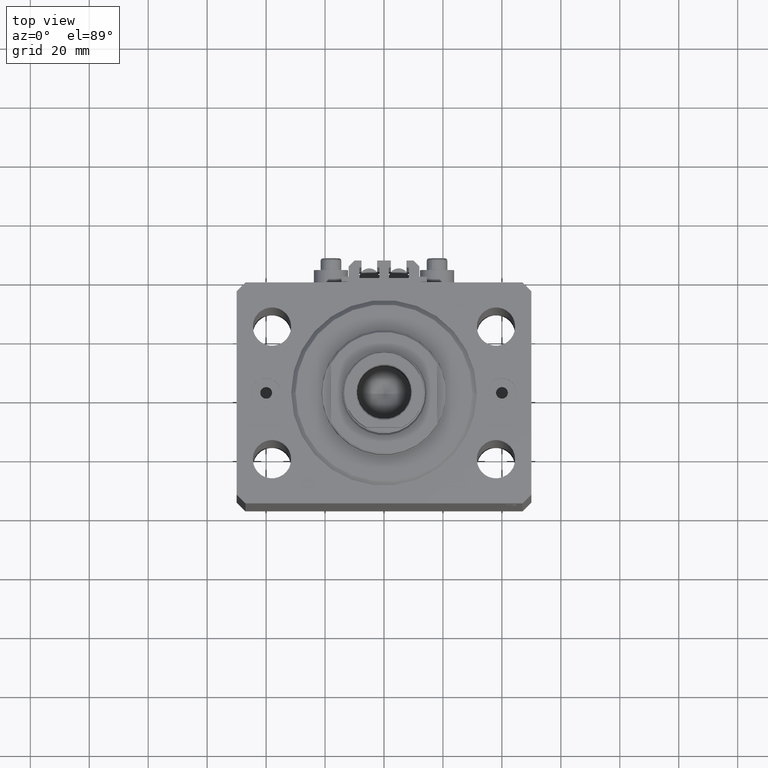
[diagram: clean part render]
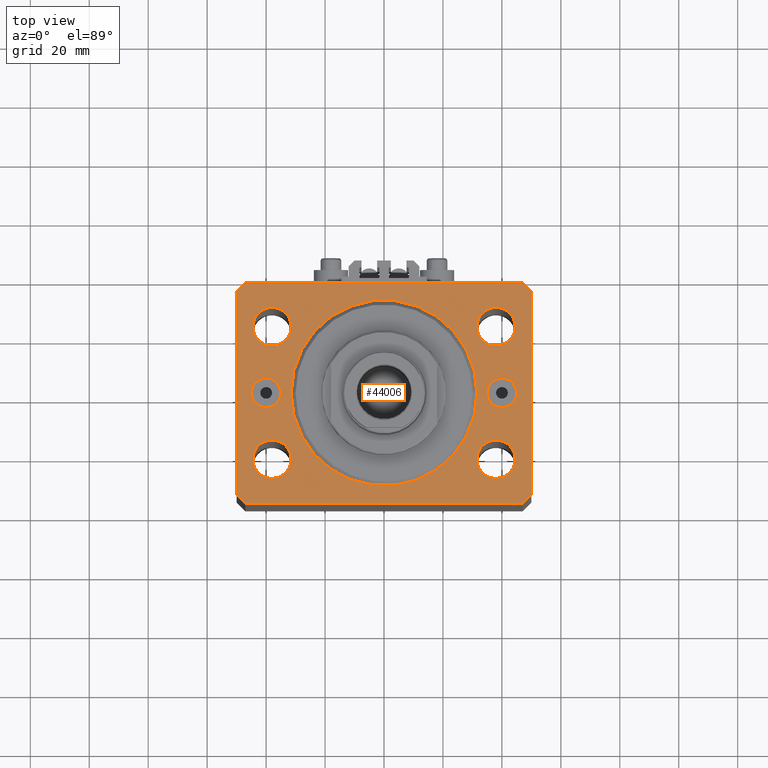
[diagram: same view with one face highlighted and labeled with its STEP entity id]
A machine part, top view. The second image highlights one B-rep face of the part: STEP entity #44006.
In plain terms, the highlighted planar face has unit normal (0, 0, 1).
Its self-contained STEP definition (entity closure, byte-faithful):
#175 = CARTESIAN_POINT ( 'NONE',  ( 35.00000000000000000, 6.123233995736762338E-16, 0.000000000000000000 ) ) ;
#521 = DIRECTION ( 'NONE',  ( 1.000000000000000000, 0.000000000000000000, 0.000000000000000000 ) ) ;
#621 = EDGE_CURVE ( 'NONE', #32030, #39205, #28979, .T. ) ;
#775 = CIRCLE ( 'NONE', #1537, 6.499999999999999112 ) ;
#829 = VERTEX_POINT ( 'NONE', #4056 ) ;
#1537 = AXIS2_PLACEMENT_3D ( 'NONE', #14262, #40975, #22494 ) ;
#1745 = ORIENTED_EDGE ( 'NONE', *, *, #26531, .T. ) ;
#1765 = DIRECTION ( 'NONE',  ( 1.000000000000000000, 0.000000000000000000, 0.000000000000000000 ) ) ;
#2021 = FACE_BOUND ( 'NONE', #10154, .T. ) ;
#2673 = ORIENTED_EDGE ( 'NONE', *, *, #15864, .T. ) ;
#3396 = DIRECTION ( 'NONE',  ( 1.000000000000000000, 0.000000000000000000, 0.000000000000000000 ) ) ;
#3737 = CIRCLE ( 'NONE', #26999, 4.999999999999997335 ) ;
#3855 = EDGE_CURVE ( 'NONE', #28881, #35194, #42302, .T. ) ;
#4048 = CARTESIAN_POINT ( 'NONE',  ( 50.00000000000051870, 34.49999999999995026, 0.000000000000000000 ) ) ;
#4050 = DIRECTION ( 'NONE',  ( 0.000000000000000000, 0.000000000000000000, 1.000000000000000000 ) ) ;
#4056 = CARTESIAN_POINT ( 'NONE',  ( 45.00000000000000000, 0.000000000000000000, 0.000000000000000000 ) ) ;
#4107 = ORIENTED_EDGE ( 'NONE', *, *, #24655, .F. ) ;
#4282 = DIRECTION ( 'NONE',  ( 0.7071067811865483499, 0.7071067811865466846, 0.000000000000000000 ) ) ;
#4333 = VERTEX_POINT ( 'NONE', #175 ) ;
#4718 = CARTESIAN_POINT ( 'NONE',  ( -40.00000000000000000, 0.000000000000000000, 0.000000000000000000 ) ) ;
#4885 = CARTESIAN_POINT ( 'NONE',  ( 40.00000000000000000, 0.000000000000000000, 0.000000000000000000 ) ) ;
#5309 = CARTESIAN_POINT ( 'NONE',  ( 50.00000000000051870, 34.49999999999995026, 0.000000000000000000 ) ) ;
#5374 = VECTOR ( 'NONE', #13932, 1000.000000000000000 ) ;
#5993 = VERTEX_POINT ( 'NONE', #29226 ) ;
#6028 = DIRECTION ( 'NONE',  ( 0.000000000000000000, 0.000000000000000000, 1.000000000000000000 ) ) ;
#6099 = LINE ( 'NONE', #28413, #16813 ) ;
#6116 = CARTESIAN_POINT ( 'NONE',  ( -31.50000000000000000, 22.49999999999999645, 0.000000000000000000 ) ) ;
#6279 = CARTESIAN_POINT ( 'NONE',  ( 31.50000000000000000, 0.000000000000000000, 0.000000000000000000 ) ) ;
#6725 = LINE ( 'NONE', #17646, #21760 ) ;
#7200 = DIRECTION ( 'NONE',  ( 0.7071067811865491270, -0.7071067811865459074, 0.000000000000000000 ) ) ;
#7523 = EDGE_LOOP ( 'NONE', ( #31451, #29575 ) ) ;
#7644 = EDGE_CURVE ( 'NONE', #9179, #15831, #6099, .T. ) ;
#7829 = AXIS2_PLACEMENT_3D ( 'NONE', #31156, #4050, #33159 ) ;
#7861 = DIRECTION ( 'NONE',  ( 0.000000000000000000, 0.000000000000000000, 1.000000000000000000 ) ) ;
#8321 = EDGE_CURVE ( 'NONE', #39571, #22722, #13906, .T. ) ;
#8363 = DIRECTION ( 'NONE',  ( 1.000000000000000000, 0.000000000000000000, -0.000000000000000000 ) ) ;
#8549 = CARTESIAN_POINT ( 'NONE',  ( 37.99999999999999289, -22.50000000000000000, 0.000000000000000000 ) ) ;
#8590 = CARTESIAN_POINT ( 'NONE',  ( -37.99999999999999289, -22.50000000000000000, 0.000000000000000000 ) ) ;
#8795 = DIRECTION ( 'NONE',  ( 0.000000000000000000, 0.000000000000000000, 1.000000000000000000 ) ) ;
#9179 = VERTEX_POINT ( 'NONE', #26567 ) ;
#9315 = EDGE_LOOP ( 'NONE', ( #32844, #25564 ) ) ;
#9780 = CARTESIAN_POINT ( 'NONE',  ( -47.00000000000000000, -37.49999999999999289, 0.000000000000000000 ) ) ;
#10002 = VERTEX_POINT ( 'NONE', #12016 ) ;
#10154 = EDGE_LOOP ( 'NONE', ( #13600, #17907 ) ) ;
#10760 = CARTESIAN_POINT ( 'NONE',  ( -50.00000000000001421, 34.50000000000000000, 0.000000000000000000 ) ) ;
#10954 = AXIS2_PLACEMENT_3D ( 'NONE', #41634, #16120, #8363 ) ;
#11598 = AXIS2_PLACEMENT_3D ( 'NONE', #37867, #42488, #31995 ) ;
#12016 = CARTESIAN_POINT ( 'NONE',  ( -31.50000000000000000, 3.857637417314162689E-15, 0.000000000000000000 ) ) ;
#12147 = DIRECTION ( 'NONE',  ( 1.000000000000000000, 0.000000000000000000, 0.000000000000000000 ) ) ;
#12388 = ORIENTED_EDGE ( 'NONE', *, *, #7644, .T. ) ;
#13104 = CIRCLE ( 'NONE', #20111, 6.499999999999999112 ) ;
#13600 = ORIENTED_EDGE ( 'NONE', *, *, #15980, .F. ) ;
#13723 = VECTOR ( 'NONE', #41959, 1000.000000000000000 ) ;
#13906 = LINE ( 'NONE', #28236, #13723 ) ;
#13932 = DIRECTION ( 'NONE',  ( 2.011273595335428326E-16, -1.000000000000000000, 0.000000000000000000 ) ) ;
#14043 = EDGE_CURVE ( 'NONE', #5993, #30154, #42534, .T. ) ;
#14262 = CARTESIAN_POINT ( 'NONE',  ( 38.00000000000000000, 22.49999999999998934, 0.000000000000000000 ) ) ;
#14396 = CARTESIAN_POINT ( 'NONE',  ( -47.00000000000001421, 37.50000000000000000, 0.000000000000000000 ) ) ;
#14461 = CARTESIAN_POINT ( 'NONE',  ( -31.49999999999999289, -22.50000000000000000, 0.000000000000000000 ) ) ;
#15831 = VERTEX_POINT ( 'NONE', #5309 ) ;
#15864 = EDGE_CURVE ( 'NONE', #39885, #18147, #25086, .T. ) ;
#15879 = FACE_OUTER_BOUND ( 'NONE', #28841, .T. ) ;
#15980 = EDGE_CURVE ( 'NONE', #41782, #19012, #13104, .T. ) ;
#16023 = DIRECTION ( 'NONE',  ( 0.000000000000000000, -0.000000000000000000, -1.000000000000000000 ) ) ;
#16120 = DIRECTION ( 'NONE',  ( 0.000000000000000000, 0.000000000000000000, 1.000000000000000000 ) ) ;
#16123 = EDGE_LOOP ( 'NONE', ( #4107, #22119 ) ) ;
#16169 = CIRCLE ( 'NONE', #32431, 4.999999999999997335 ) ;
#16744 = EDGE_CURVE ( 'NONE', #15831, #39571, #44128, .T. ) ;
#16813 = VECTOR ( 'NONE', #39115, 1000.000000000000000 ) ;
#17163 = EDGE_LOOP ( 'NONE', ( #46500, #25696 ) ) ;
#17646 = CARTESIAN_POINT ( 'NONE',  ( -50.00000000000000000, -34.50000000000000000, 0.000000000000000000 ) ) ;
#17907 = ORIENTED_EDGE ( 'NONE', *, *, #33088, .F. ) ;
#18147 = VERTEX_POINT ( 'NONE', #43508 ) ;
#18455 = CARTESIAN_POINT ( 'NONE',  ( -44.50000000000000000, 22.49999999999999645, 0.000000000000000000 ) ) ;
#18908 = EDGE_CURVE ( 'NONE', #39205, #32030, #28255, .T. ) ;
#19012 = VERTEX_POINT ( 'NONE', #35960 ) ;
#19214 = LINE ( 'NONE', #22361, #33155 ) ;
#19508 = DIRECTION ( 'NONE',  ( 0.000000000000000000, 0.000000000000000000, 1.000000000000000000 ) ) ;
#19541 = AXIS2_PLACEMENT_3D ( 'NONE', #45388, #34911, #46106 ) ;
#19700 = DIRECTION ( 'NONE',  ( 1.000000000000000000, 0.000000000000000000, 0.000000000000000000 ) ) ;
#20111 = AXIS2_PLACEMENT_3D ( 'NONE', #8590, #7861, #37221 ) ;
#20368 = EDGE_CURVE ( 'NONE', #20772, #9179, #40700, .T. ) ;
#20684 = VERTEX_POINT ( 'NONE', #6279 ) ;
#20772 = VERTEX_POINT ( 'NONE', #28608 ) ;
#20865 = EDGE_LOOP ( 'NONE', ( #44833, #43537 ) ) ;
#20933 = LINE ( 'NONE', #9780, #38939 ) ;
#21343 = DIRECTION ( 'NONE',  ( 0.000000000000000000, 0.000000000000000000, 1.000000000000000000 ) ) ;
#21760 = VECTOR ( 'NONE', #7200, 1000.000000000000114 ) ;
#22119 = ORIENTED_EDGE ( 'NONE', *, *, #39320, .F. ) ;
#22361 = CARTESIAN_POINT ( 'NONE',  ( -47.00000000000001421, 37.50000000000000000, 0.000000000000000000 ) ) ;
#22494 = DIRECTION ( 'NONE',  ( 1.000000000000000000, 0.000000000000000000, 0.000000000000000000 ) ) ;
#22722 = VERTEX_POINT ( 'NONE', #14396 ) ;
#22911 = ORIENTED_EDGE ( 'NONE', *, *, #43516, .T. ) ;
#23572 = CARTESIAN_POINT ( 'NONE',  ( 47.00000000000056843, 37.49999999999999289, 0.000000000000000000 ) ) ;
#23632 = FACE_BOUND ( 'NONE', #16123, .T. ) ;
#23681 = EDGE_CURVE ( 'NONE', #22722, #39885, #19214, .T. ) ;
#23897 = CIRCLE ( 'NONE', #30873, 6.499999999999999112 ) ;
#23969 = ORIENTED_EDGE ( 'NONE', *, *, #23681, .T. ) ;
#24220 = DIRECTION ( 'NONE',  ( 1.000000000000000000, 0.000000000000000000, 0.000000000000000000 ) ) ;
#24655 = EDGE_CURVE ( 'NONE', #20684, #10002, #44079, .T. ) ;
#25043 = DIRECTION ( 'NONE',  ( 1.000000000000000000, -1.476360405086644309E-16, 0.000000000000000000 ) ) ;
#25086 = LINE ( 'NONE', #10760, #5374 ) ;
#25564 = ORIENTED_EDGE ( 'NONE', *, *, #18908, .F. ) ;
#25696 = ORIENTED_EDGE ( 'NONE', *, *, #36351, .F. ) ;
#25706 = CARTESIAN_POINT ( 'NONE',  ( -50.00000000000001421, 34.50000000000000000, 0.000000000000000000 ) ) ;
#25869 = DIRECTION ( 'NONE',  ( -0.7071067811865361374, 0.7071067811865588970, 0.000000000000000000 ) ) ;
#25907 = DIRECTION ( 'NONE',  ( 1.000000000000000000, 0.000000000000000000, 0.000000000000000000 ) ) ;
#25946 = CARTESIAN_POINT ( 'NONE',  ( -38.00000000000000000, 22.49999999999999645, 0.000000000000000000 ) ) ;
#26093 = CARTESIAN_POINT ( 'NONE',  ( 44.49999999999999289, -22.50000000000000000, 0.000000000000000000 ) ) ;
#26531 = EDGE_CURVE ( 'NONE', #829, #4333, #16169, .T. ) ;
#26567 = CARTESIAN_POINT ( 'NONE',  ( 50.00000000000000000, -34.50000000000000711, 0.000000000000000000 ) ) ;
#26727 = DIRECTION ( 'NONE',  ( 0.000000000000000000, 0.000000000000000000, 1.000000000000000000 ) ) ;
#26796 = PLANE ( 'NONE',  #10954 ) ;
#26999 = AXIS2_PLACEMENT_3D ( 'NONE', #4718, #19508, #34324 ) ;
#27488 = CARTESIAN_POINT ( 'NONE',  ( 37.99999999999999289, -22.50000000000000000, 0.000000000000000000 ) ) ;
#27697 = DIRECTION ( 'NONE',  ( 1.000000000000000000, 0.000000000000000000, 0.000000000000000000 ) ) ;
#28096 = CARTESIAN_POINT ( 'NONE',  ( 31.50000000000000000, 22.49999999999998934, 0.000000000000000000 ) ) ;
#28236 = CARTESIAN_POINT ( 'NONE',  ( 47.00000000000056843, 37.49999999999999289, 0.000000000000000000 ) ) ;
#28255 = CIRCLE ( 'NONE', #46916, 6.499999999999999112 ) ;
#28413 = CARTESIAN_POINT ( 'NONE',  ( 50.00000000000000000, -34.50000000000000711, 0.000000000000000000 ) ) ;
#28555 = ORIENTED_EDGE ( 'NONE', *, *, #20368, .T. ) ;
#28608 = CARTESIAN_POINT ( 'NONE',  ( 47.00000000000000000, -37.50000000000000711, 0.000000000000000000 ) ) ;
#28841 = EDGE_LOOP ( 'NONE', ( #42057, #23969, #2673, #22911, #40307, #28555, #12388, #31417 ) ) ;
#28881 = VERTEX_POINT ( 'NONE', #18455 ) ;
#28979 = CIRCLE ( 'NONE', #39837, 6.499999999999999112 ) ;
#29226 = CARTESIAN_POINT ( 'NONE',  ( 44.50000000000000000, 22.49999999999998934, 0.000000000000000000 ) ) ;
#29318 = AXIS2_PLACEMENT_3D ( 'NONE', #31815, #8795, #27697 ) ;
#29575 = ORIENTED_EDGE ( 'NONE', *, *, #3855, .F. ) ;
#30154 = VERTEX_POINT ( 'NONE', #28096 ) ;
#30401 = ORIENTED_EDGE ( 'NONE', *, *, #36227, .T. ) ;
#30445 = FACE_BOUND ( 'NONE', #9315, .T. ) ;
#30873 = AXIS2_PLACEMENT_3D ( 'NONE', #37658, #26727, #521 ) ;
#30960 = VECTOR ( 'NONE', #25869, 1000.000000000000114 ) ;
#31156 = CARTESIAN_POINT ( 'NONE',  ( 0.000000000000000000, 0.000000000000000000, 0.000000000000000000 ) ) ;
#31417 = ORIENTED_EDGE ( 'NONE', *, *, #16744, .T. ) ;
#31451 = ORIENTED_EDGE ( 'NONE', *, *, #33228, .F. ) ;
#31815 = CARTESIAN_POINT ( 'NONE',  ( 0.000000000000000000, 0.000000000000000000, 0.000000000000000000 ) ) ;
#31995 = DIRECTION ( 'NONE',  ( 1.000000000000000000, 0.000000000000000000, 0.000000000000000000 ) ) ;
#32030 = VERTEX_POINT ( 'NONE', #26093 ) ;
#32431 = AXIS2_PLACEMENT_3D ( 'NONE', #4885, #16023, #12147 ) ;
#32844 = ORIENTED_EDGE ( 'NONE', *, *, #621, .F. ) ;
#32948 = EDGE_CURVE ( 'NONE', #46905, #40141, #3737, .T. ) ;
#33088 = EDGE_CURVE ( 'NONE', #19012, #41782, #23897, .T. ) ;
#33155 = VECTOR ( 'NONE', #34033, 1000.000000000000000 ) ;
#33159 = DIRECTION ( 'NONE',  ( 1.000000000000000000, 0.000000000000000000, 0.000000000000000000 ) ) ;
#33228 = EDGE_CURVE ( 'NONE', #35194, #28881, #48008, .T. ) ;
#33317 = CIRCLE ( 'NONE', #11598, 4.999999999999997335 ) ;
#33402 = CARTESIAN_POINT ( 'NONE',  ( 47.00000000000000000, -37.50000000000000711, 0.000000000000000000 ) ) ;
#34033 = DIRECTION ( 'NONE',  ( -0.7071067811865483499, -0.7071067811865466846, 0.000000000000000000 ) ) ;
#34324 = DIRECTION ( 'NONE',  ( 1.000000000000000000, 0.000000000000000000, 0.000000000000000000 ) ) ;
#34578 = FACE_BOUND ( 'NONE', #7523, .T. ) ;
#34810 = FACE_BOUND ( 'NONE', #20865, .T. ) ;
#34911 = DIRECTION ( 'NONE',  ( 0.000000000000000000, 0.000000000000000000, 1.000000000000000000 ) ) ;
#35194 = VERTEX_POINT ( 'NONE', #6116 ) ;
#35293 = AXIS2_PLACEMENT_3D ( 'NONE', #25946, #21343, #3396 ) ;
#35960 = CARTESIAN_POINT ( 'NONE',  ( -44.49999999999999289, -22.50000000000000000, 0.000000000000000000 ) ) ;
#36227 = EDGE_CURVE ( 'NONE', #4333, #829, #33317, .T. ) ;
#36351 = EDGE_CURVE ( 'NONE', #30154, #5993, #775, .T. ) ;
#37081 = DIRECTION ( 'NONE',  ( 0.000000000000000000, 0.000000000000000000, 1.000000000000000000 ) ) ;
#37221 = DIRECTION ( 'NONE',  ( 1.000000000000000000, 0.000000000000000000, 0.000000000000000000 ) ) ;
#37503 = VERTEX_POINT ( 'NONE', #40433 ) ;
#37658 = CARTESIAN_POINT ( 'NONE',  ( -37.99999999999999289, -22.50000000000000000, 0.000000000000000000 ) ) ;
#37867 = CARTESIAN_POINT ( 'NONE',  ( 40.00000000000000000, 0.000000000000000000, 0.000000000000000000 ) ) ;
#38221 = FACE_BOUND ( 'NONE', #17163, .T. ) ;
#38939 = VECTOR ( 'NONE', #25043, 1000.000000000000000 ) ;
#39115 = DIRECTION ( 'NONE',  ( 7.441712302741091634E-15, 1.000000000000000000, 0.000000000000000000 ) ) ;
#39205 = VERTEX_POINT ( 'NONE', #40224 ) ;
#39320 = EDGE_CURVE ( 'NONE', #10002, #20684, #40393, .T. ) ;
#39571 = VERTEX_POINT ( 'NONE', #23572 ) ;
#39837 = AXIS2_PLACEMENT_3D ( 'NONE', #8549, #45955, #19700 ) ;
#39885 = VERTEX_POINT ( 'NONE', #25706 ) ;
#40141 = VERTEX_POINT ( 'NONE', #48016 ) ;
#40224 = CARTESIAN_POINT ( 'NONE',  ( 31.49999999999999289, -22.50000000000000000, 0.000000000000000000 ) ) ;
#40307 = ORIENTED_EDGE ( 'NONE', *, *, #46807, .T. ) ;
#40393 = CIRCLE ( 'NONE', #7829, 31.50000000000000000 ) ;
#40433 = CARTESIAN_POINT ( 'NONE',  ( -47.00000000000000000, -37.49999999999999289, 0.000000000000000000 ) ) ;
#40598 = CARTESIAN_POINT ( 'NONE',  ( -45.00000000000000000, 6.123233995736762338E-16, 0.000000000000000000 ) ) ;
#40700 = LINE ( 'NONE', #33402, #45094 ) ;
#40975 = DIRECTION ( 'NONE',  ( 0.000000000000000000, 0.000000000000000000, 1.000000000000000000 ) ) ;
#41006 = AXIS2_PLACEMENT_3D ( 'NONE', #44644, #37081, #25907 ) ;
#41594 = EDGE_CURVE ( 'NONE', #40141, #46905, #44370, .T. ) ;
#41634 = CARTESIAN_POINT ( 'NONE',  ( 0.000000000000000000, 0.000000000000000000, 0.000000000000000000 ) ) ;
#41782 = VERTEX_POINT ( 'NONE', #14461 ) ;
#41959 = DIRECTION ( 'NONE',  ( -1.000000000000000000, 7.381802025433175941E-17, 0.000000000000000000 ) ) ;
#42057 = ORIENTED_EDGE ( 'NONE', *, *, #8321, .T. ) ;
#42302 = CIRCLE ( 'NONE', #35293, 6.499999999999999112 ) ;
#42488 = DIRECTION ( 'NONE',  ( 0.000000000000000000, -0.000000000000000000, -1.000000000000000000 ) ) ;
#42534 = CIRCLE ( 'NONE', #47955, 6.499999999999999112 ) ;
#43430 = CARTESIAN_POINT ( 'NONE',  ( 38.00000000000000000, 22.49999999999998934, 0.000000000000000000 ) ) ;
#43508 = CARTESIAN_POINT ( 'NONE',  ( -50.00000000000000000, -34.50000000000000000, 0.000000000000000000 ) ) ;
#43516 = EDGE_CURVE ( 'NONE', #18147, #37503, #6725, .T. ) ;
#43537 = ORIENTED_EDGE ( 'NONE', *, *, #32948, .F. ) ;
#44006 = ADVANCED_FACE ( 'NONE', ( #15879, #34578, #38221, #30445, #2021, #23632, #34810, #45294 ), #26796, .T. ) ;
#44079 = CIRCLE ( 'NONE', #29318, 31.50000000000000000 ) ;
#44128 = LINE ( 'NONE', #4048, #30960 ) ;
#44370 = CIRCLE ( 'NONE', #19541, 4.999999999999997335 ) ;
#44644 = CARTESIAN_POINT ( 'NONE',  ( -38.00000000000000000, 22.49999999999999645, 0.000000000000000000 ) ) ;
#44833 = ORIENTED_EDGE ( 'NONE', *, *, #41594, .F. ) ;
#45094 = VECTOR ( 'NONE', #4282, 1000.000000000000000 ) ;
#45294 = FACE_BOUND ( 'NONE', #47664, .T. ) ;
#45388 = CARTESIAN_POINT ( 'NONE',  ( -40.00000000000000000, 0.000000000000000000, 0.000000000000000000 ) ) ;
#45955 = DIRECTION ( 'NONE',  ( 0.000000000000000000, 0.000000000000000000, 1.000000000000000000 ) ) ;
#46106 = DIRECTION ( 'NONE',  ( 1.000000000000000000, 0.000000000000000000, 0.000000000000000000 ) ) ;
#46211 = DIRECTION ( 'NONE',  ( 0.000000000000000000, 0.000000000000000000, 1.000000000000000000 ) ) ;
#46500 = ORIENTED_EDGE ( 'NONE', *, *, #14043, .F. ) ;
#46807 = EDGE_CURVE ( 'NONE', #37503, #20772, #20933, .T. ) ;
#46905 = VERTEX_POINT ( 'NONE', #40598 ) ;
#46916 = AXIS2_PLACEMENT_3D ( 'NONE', #27488, #46211, #1765 ) ;
#47664 = EDGE_LOOP ( 'NONE', ( #1745, #30401 ) ) ;
#47955 = AXIS2_PLACEMENT_3D ( 'NONE', #43430, #6028, #24220 ) ;
#48008 = CIRCLE ( 'NONE', #41006, 6.499999999999999112 ) ;
#48016 = CARTESIAN_POINT ( 'NONE',  ( -35.00000000000000000, 0.000000000000000000, 0.000000000000000000 ) ) ;